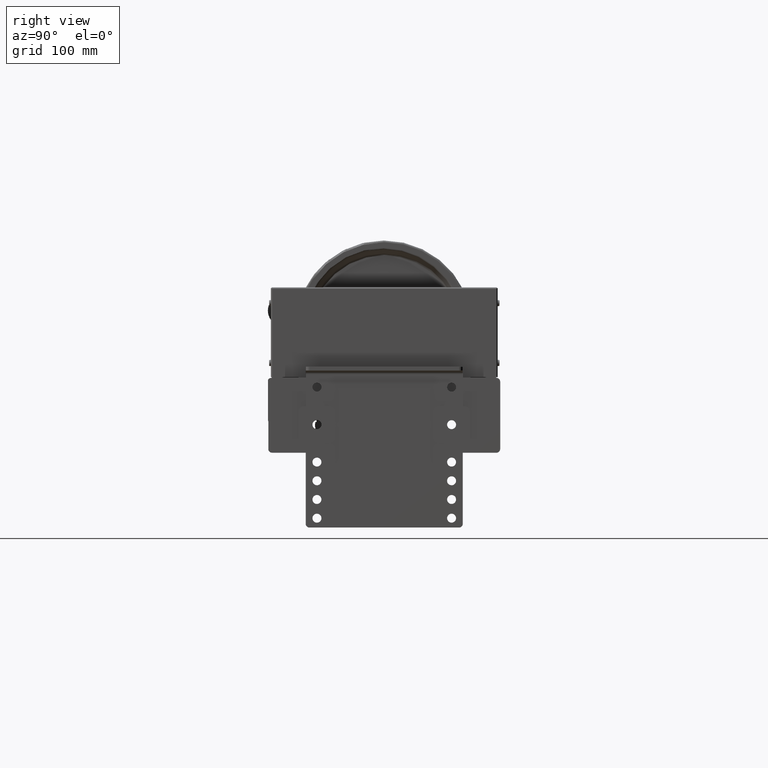
[diagram: clean part render]
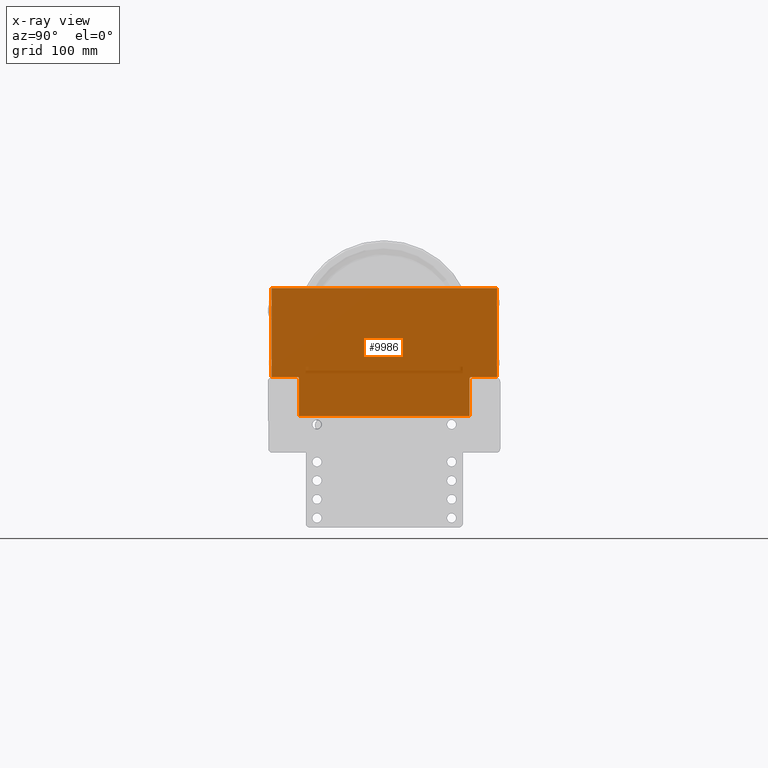
[diagram: x-ray — body ghosted, one internal face saturated and labeled with its STEP entity id]
A machine part, right view, then the same camera in x-ray: the body is ghosted and one INTERNAL B-rep face — a face not visible from any outside direction — is saturated and labeled: STEP entity #9986.
In plain terms, the highlighted planar face has unit normal (1, 0, -0).
Its self-contained STEP definition (entity closure, byte-faithful):
#8716=CARTESIAN_POINT('',(-54.0,-35.500000000000000,0.500000000000000));
#8717=VERTEX_POINT('',#8716);
#8724=CARTESIAN_POINT('',(-56.0,-33.500000000000000,0.500000000000000));
#8725=VERTEX_POINT('',#8724);
#8726=CARTESIAN_POINT('',(-56.0,-35.500000000000000,0.500000000000000));
#8727=DIRECTION('',(0.0,0.0,1.000000000000000));
#8728=DIRECTION('',(0.707106781186548,0.707106781186548,0.0));
#8729=AXIS2_PLACEMENT_3D('',#8726,#8727,#8728);
#8730=CIRCLE('',#8729,2.000000000000000);
#8731=EDGE_CURVE('',#8717,#8725,#8730,.T.);
#8781=CARTESIAN_POINT('',(-54.0,-85.499999999999943,0.500000000000000));
#8782=VERTEX_POINT('',#8781);
#8789=CARTESIAN_POINT('',(-54.0,-85.499999999999943,0.500000000000000));
#8790=DIRECTION('',(0.0,1.0,0.0));
#8791=VECTOR('',#8790,49.999999999999943);
#8792=LINE('',#8789,#8791);
#8793=EDGE_CURVE('',#8782,#8717,#8792,.T.);
#8846=CARTESIAN_POINT('',(-90.500000000000000,-33.500000000000000,0.500000000000000));
#8847=VERTEX_POINT('',#8846);
#8848=CARTESIAN_POINT('',(-56.0,-33.500000000000000,0.500000000000000));
#8849=DIRECTION('',(-1.0,0.0,0.0));
#8850=VECTOR('',#8849,34.500000000000000);
#8851=LINE('',#8848,#8850);
#8852=EDGE_CURVE('',#8725,#8847,#8851,.T.);
#9021=CARTESIAN_POINT('',(-90.500000000000000,85.499999999999886,0.500000000000000));
#9022=VERTEX_POINT('',#9021);
#9149=CARTESIAN_POINT('',(210.499999999999890,85.499999999999886,0.500000000000000));
#9150=VERTEX_POINT('',#9149);
#9300=CARTESIAN_POINT('',(210.500000000000000,-33.500000000000114,0.500000000000000));
#9301=VERTEX_POINT('',#9300);
#9308=CARTESIAN_POINT('',(176.0,-33.500000000000000,0.500000000000000));
#9309=VERTEX_POINT('',#9308);
#9310=CARTESIAN_POINT('',(210.500000000000000,-33.500000000000114,0.500000000000000));
#9311=DIRECTION('',(-1.0,0.0,0.0));
#9312=VECTOR('',#9311,34.500000000000000);
#9313=LINE('',#9310,#9312);
#9314=EDGE_CURVE('',#9301,#9309,#9313,.T.);
#9358=CARTESIAN_POINT('',(174.0,-35.500000000000114,0.500000000000000));
#9359=VERTEX_POINT('',#9358);
#9360=CARTESIAN_POINT('',(176.0,-35.500000000000114,0.500000000000000));
#9361=DIRECTION('',(0.0,0.0,1.000000000000000));
#9362=DIRECTION('',(-0.707106781186548,0.707106781186548,0.0));
#9363=AXIS2_PLACEMENT_3D('',#9360,#9361,#9362);
#9364=CIRCLE('',#9363,2.000000000000000);
#9365=EDGE_CURVE('',#9309,#9359,#9364,.T.);
#9455=CARTESIAN_POINT('',(174.0,-85.500000000000114,0.500000000000000));
#9456=VERTEX_POINT('',#9455);
#9463=CARTESIAN_POINT('',(174.0,-85.500000000000114,0.500000000000000));
#9464=DIRECTION('',(-1.0,0.0,0.0));
#9465=VECTOR('',#9464,228.0);
#9466=LINE('',#9463,#9465);
#9467=EDGE_CURVE('',#9456,#8782,#9466,.T.);
#9811=CARTESIAN_POINT('',(-90.500000000000000,85.499999999999886,0.500000000000000));
#9812=DIRECTION('',(1.0,0.0,0.0));
#9813=VECTOR('',#9812,300.999999999999890);
#9814=LINE('',#9811,#9813);
#9815=EDGE_CURVE('',#9022,#9150,#9814,.T.);
#9876=CARTESIAN_POINT('',(210.499999999999890,85.499999999999886,0.500000000000000));
#9877=DIRECTION('',(0.0,-1.0,0.0));
#9878=VECTOR('',#9877,119.0);
#9879=LINE('',#9876,#9878);
#9880=EDGE_CURVE('',#9150,#9301,#9879,.T.);
#9913=CARTESIAN_POINT('',(-90.500000000000000,-33.500000000000000,0.500000000000000));
#9914=DIRECTION('',(0.0,1.0,0.0));
#9915=VECTOR('',#9914,118.999999999999890);
#9916=LINE('',#9913,#9915);
#9917=EDGE_CURVE('',#8847,#9022,#9916,.T.);
#9955=CARTESIAN_POINT('',(174.0,-35.500000000000114,0.500000000000000));
#9956=DIRECTION('',(0.0,-1.0,0.0));
#9957=VECTOR('',#9956,50.0);
#9958=LINE('',#9955,#9957);
#9959=EDGE_CURVE('',#9359,#9456,#9958,.T.);
#9969=CARTESIAN_POINT('',(60.0,4.021186440677894,0.500000000000000));
#9970=DIRECTION('',(0.0,0.0,1.0));
#9971=DIRECTION('',(1.0,0.0,0.0));
#9972=AXIS2_PLACEMENT_3D('',#9969,#9970,#9971);
#9973=PLANE('',#9972);
#9974=ORIENTED_EDGE('',*,*,#9880,.F.);
#9975=ORIENTED_EDGE('',*,*,#9815,.F.);
#9976=ORIENTED_EDGE('',*,*,#9917,.F.);
#9977=ORIENTED_EDGE('',*,*,#8852,.F.);
#9978=ORIENTED_EDGE('',*,*,#8731,.F.);
#9979=ORIENTED_EDGE('',*,*,#8793,.F.);
#9980=ORIENTED_EDGE('',*,*,#9467,.F.);
#9981=ORIENTED_EDGE('',*,*,#9959,.F.);
#9982=ORIENTED_EDGE('',*,*,#9365,.F.);
#9983=ORIENTED_EDGE('',*,*,#9314,.F.);
#9984=EDGE_LOOP('',(#9974,#9975,#9976,#9977,#9978,#9979,#9980,#9981,#9982,#9983));
#9985=FACE_OUTER_BOUND('',#9984,.T.);
#9986=ADVANCED_FACE('',(#9985),#9973,.T.);